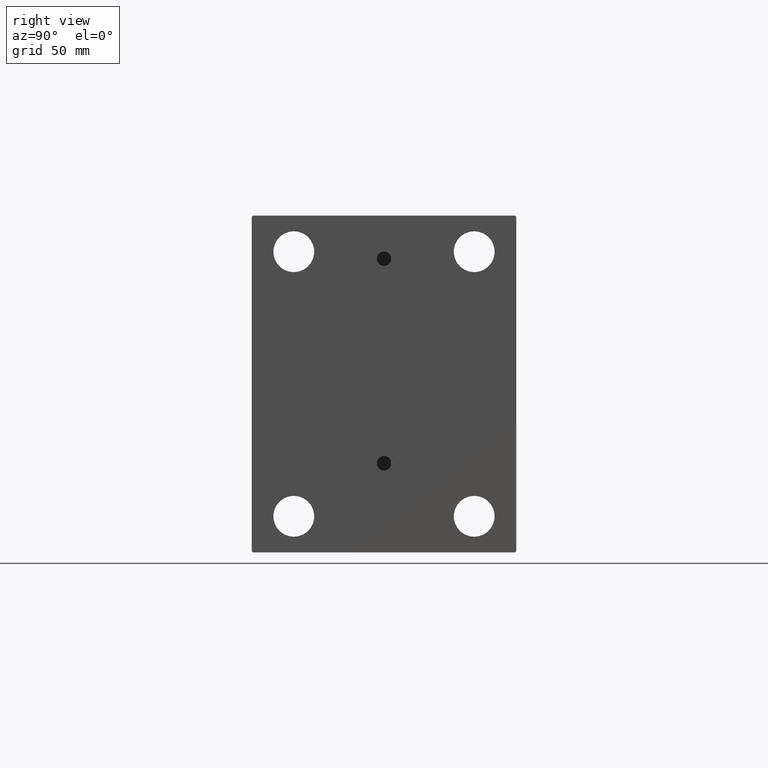
[diagram: clean part render]
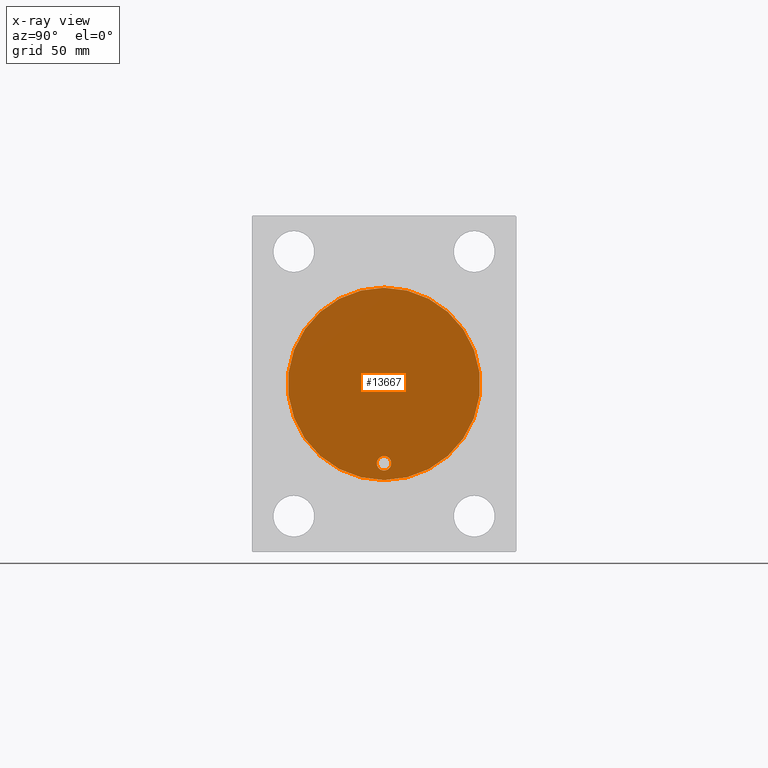
[diagram: x-ray — body ghosted, one internal face saturated and labeled with its STEP entity id]
A machine part, right view, then the same camera in x-ray: the body is ghosted and one INTERNAL B-rep face — a face not visible from any outside direction — is saturated and labeled: STEP entity #13667.
In plain terms, the highlighted planar face has unit normal (-1, 0, 0).
Its self-contained STEP definition (entity closure, byte-faithful):
#253 = CARTESIAN_POINT ( 'NONE',  ( 51.00000000000000000, 4.041334437186266200E-15, -33.00000000000000000 ) ) ;
#462 = ORIENTED_EDGE ( 'NONE', *, *, #19868, .T. ) ;
#1253 = DIRECTION ( 'NONE',  ( -1.000000000000000000, 0.000000000000000000, 0.000000000000000000 ) ) ;
#1448 = DIRECTION ( 'NONE',  ( -1.000000000000000000, 0.000000000000000000, 0.000000000000000000 ) ) ;
#1550 = CARTESIAN_POINT ( 'NONE',  ( 51.00000000000000000, 4.898587196589413026E-15, -40.00000000000000000 ) ) ;
#4324 = FACE_BOUND ( 'NONE', #15896, .T. ) ;
#4639 = ORIENTED_EDGE ( 'NONE', *, *, #33612, .F. ) ;
#5252 = DIRECTION ( 'NONE',  ( 0.000000000000000000, 0.000000000000000000, 1.000000000000000000 ) ) ;
#7379 = EDGE_CURVE ( 'NONE', #22812, #11459, #31994, .T. ) ;
#7561 = DIRECTION ( 'NONE',  ( 0.000000000000000000, 0.000000000000000000, 1.000000000000000000 ) ) ;
#7808 = DIRECTION ( 'NONE',  ( 0.000000000000000000, 0.000000000000000000, 1.000000000000000000 ) ) ;
#7879 = AXIS2_PLACEMENT_3D ( 'NONE', #28697, #21852, #39533 ) ;
#10464 = AXIS2_PLACEMENT_3D ( 'NONE', #37062, #1448, #7808 ) ;
#10922 = CARTESIAN_POINT ( 'NONE',  ( 51.00000000000000000, 4.041334437186266200E-15, -36.00000000000000711 ) ) ;
#11394 = PLANE ( 'NONE',  #46510 ) ;
#11459 = VERTEX_POINT ( 'NONE', #25483 ) ;
#13667 = ADVANCED_FACE ( 'NONE', ( #4324, #22740 ), #11394, .T. ) ;
#13755 = CARTESIAN_POINT ( 'NONE',  ( 51.00000000000000000, 0.000000000000000000, 40.00000000000000000 ) ) ;
#14640 = DIRECTION ( 'NONE',  ( -1.000000000000000000, 0.000000000000000000, 0.000000000000000000 ) ) ;
#15896 = EDGE_LOOP ( 'NONE', ( #38626, #4639 ) ) ;
#16327 = DIRECTION ( 'NONE',  ( -1.000000000000000000, 0.000000000000000000, 0.000000000000000000 ) ) ;
#17117 = AXIS2_PLACEMENT_3D ( 'NONE', #253, #14640, #7561 ) ;
#17755 = ORIENTED_EDGE ( 'NONE', *, *, #22977, .T. ) ;
#19868 = EDGE_CURVE ( 'NONE', #44938, #37882, #39873, .T. ) ;
#20173 = CIRCLE ( 'NONE', #17117, 3.000000000000002665 ) ;
#21852 = DIRECTION ( 'NONE',  ( -1.000000000000000000, 0.000000000000000000, 0.000000000000000000 ) ) ;
#22740 = FACE_OUTER_BOUND ( 'NONE', #35799, .T. ) ;
#22812 = VERTEX_POINT ( 'NONE', #10922 ) ;
#22977 = EDGE_CURVE ( 'NONE', #37882, #44938, #23738, .T. ) ;
#23738 = CIRCLE ( 'NONE', #42548, 40.00000000000000000 ) ;
#25483 = CARTESIAN_POINT ( 'NONE',  ( 51.00000000000000000, 4.408728476930471644E-15, -30.00000000000000000 ) ) ;
#28697 = CARTESIAN_POINT ( 'NONE',  ( 51.00000000000000000, 4.041334437186266200E-15, -33.00000000000000000 ) ) ;
#31994 = CIRCLE ( 'NONE', #7879, 3.000000000000002665 ) ;
#33612 = EDGE_CURVE ( 'NONE', #11459, #22812, #20173, .T. ) ;
#35799 = EDGE_LOOP ( 'NONE', ( #17755, #462 ) ) ;
#37062 = CARTESIAN_POINT ( 'NONE',  ( 51.00000000000000000, 0.000000000000000000, 0.000000000000000000 ) ) ;
#37882 = VERTEX_POINT ( 'NONE', #13755 ) ;
#38626 = ORIENTED_EDGE ( 'NONE', *, *, #7379, .F. ) ;
#39533 = DIRECTION ( 'NONE',  ( 0.000000000000000000, 0.000000000000000000, 1.000000000000000000 ) ) ;
#39873 = CIRCLE ( 'NONE', #10464, 40.00000000000000000 ) ;
#40895 = DIRECTION ( 'NONE',  ( 0.000000000000000000, 0.000000000000000000, 1.000000000000000000 ) ) ;
#42548 = AXIS2_PLACEMENT_3D ( 'NONE', #45828, #16327, #5252 ) ;
#44439 = CARTESIAN_POINT ( 'NONE',  ( 51.00000000000000000, 0.000000000000000000, 0.000000000000000000 ) ) ;
#44938 = VERTEX_POINT ( 'NONE', #1550 ) ;
#45828 = CARTESIAN_POINT ( 'NONE',  ( 51.00000000000000000, 0.000000000000000000, 0.000000000000000000 ) ) ;
#46510 = AXIS2_PLACEMENT_3D ( 'NONE', #44439, #1253, #40895 ) ;